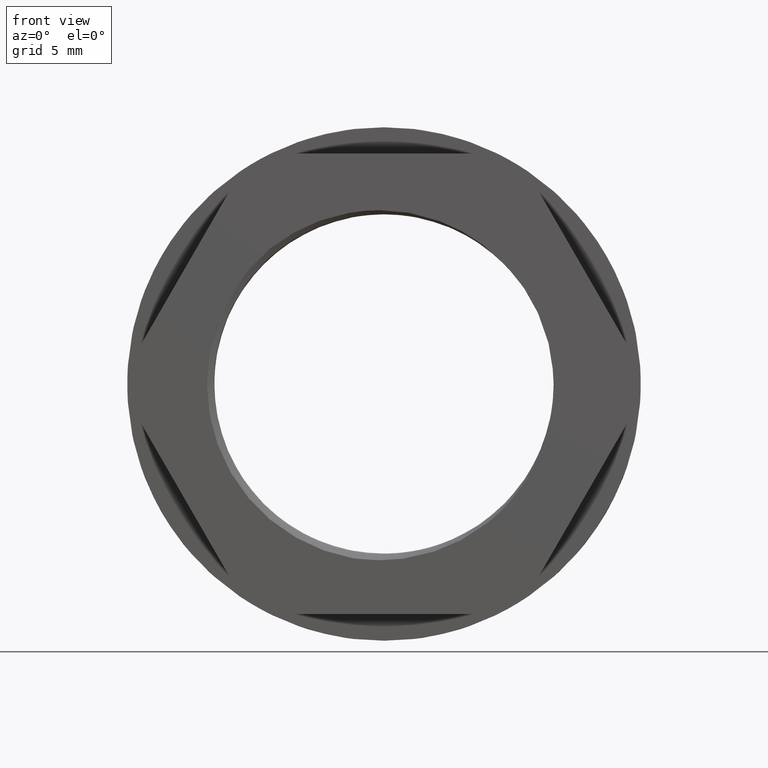
[diagram: clean part render]
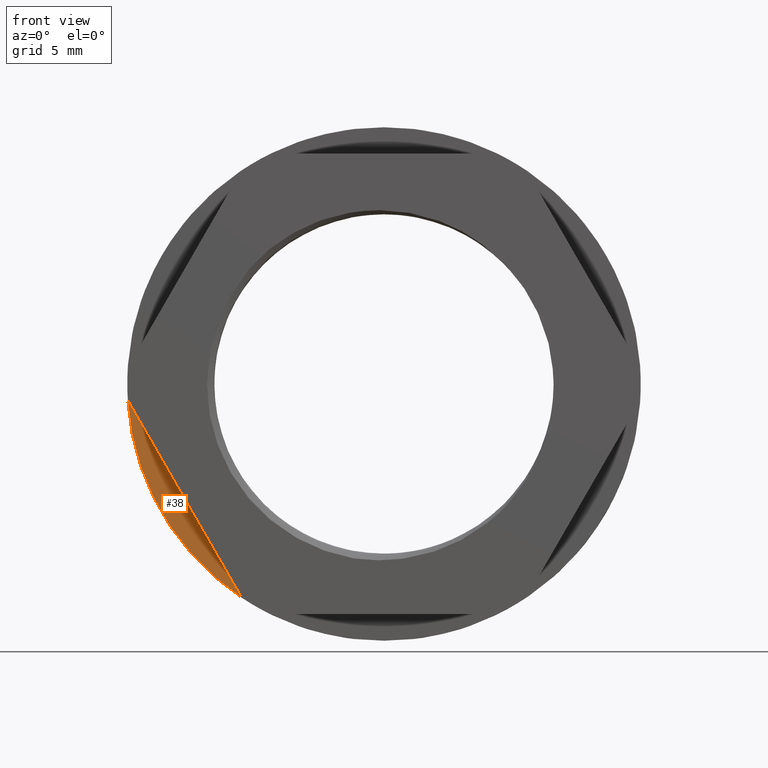
[diagram: same view with one face highlighted and labeled with its STEP entity id]
A machine part, front view. The second image highlights one B-rep face of the part: STEP entity #38.
In plain terms, the highlighted planar face has unit normal (0, -1, 0).
Its self-contained STEP definition (entity closure, byte-faithful):
#38 = ADVANCED_FACE ( 'NONE', ( #1664 ), #1659, .T. ) ;
#83 = EDGE_CURVE ( 'NONE', #748, #780, #1880, .T. ) ;
#98 = EDGE_CURVE ( 'NONE', #748, #780, #1387, .T. ) ;
#748 = VERTEX_POINT ( 'NONE', #2160 ) ;
#780 = VERTEX_POINT ( 'NONE', #2195 ) ;
#827 = ORIENTED_EDGE ( 'NONE', *, *, #98, .F. ) ;
#842 = ORIENTED_EDGE ( 'NONE', *, *, #83, .T. ) ;
#964 = EDGE_LOOP ( 'NONE', ( #842, #827 ) ) ;
#1324 = AXIS2_PLACEMENT_3D ( 'NONE', #1692, #1663, #1686 ) ;
#1379 = VECTOR ( 'NONE', #1901, 1000.000000000000000 ) ;
#1387 = CIRCLE ( 'NONE', #1394, 14.50000000000000000 ) ;
#1394 = AXIS2_PLACEMENT_3D ( 'NONE', #2025, #2039, #2011 ) ;
#1659 = PLANE ( 'NONE',  #1324 ) ;
#1663 = DIRECTION ( 'NONE',  ( 0.0000000000000000000, -1.000000000000000000, 0.0000000000000000000 ) ) ;
#1664 = FACE_OUTER_BOUND ( 'NONE', #964, .T. ) ;
#1686 = DIRECTION ( 'NONE',  ( 0.0000000000000000000, -0.0000000000000000000, -1.000000000000000000 ) ) ;
#1692 = CARTESIAN_POINT ( 'NONE',  ( 0.0000000000000000000, -11.70000000000000100, 0.0000000000000000000 ) ) ;
#1880 = LINE ( 'NONE', #1943, #1379 ) ;
#1901 = DIRECTION ( 'NONE',  ( -0.4999999999999998900, -0.0000000000000000000, 0.8660254037844387100 ) ) ;
#1943 = CARTESIAN_POINT ( 'NONE',  ( -14.09811457199406300, -11.70000000000000100, -1.581349270379120100 ) ) ;
#2011 = DIRECTION ( 'NONE',  ( 0.0000000000000000000, 0.0000000000000000000, -1.000000000000000000 ) ) ;
#2025 = CARTESIAN_POINT ( 'NONE',  ( 0.0000000000000000000, -11.70000000000000100, 0.0000000000000000000 ) ) ;
#2039 = DIRECTION ( 'NONE',  ( 0.0000000000000000000, 1.000000000000000000, 0.0000000000000000000 ) ) ;
#2160 = CARTESIAN_POINT ( 'NONE',  ( -8.047022104531421900, -11.70000000000000100, -12.06214886532174700 ) ) ;
#2195 = CARTESIAN_POINT ( 'NONE',  ( -14.46963839386398700, -11.70000000000000100, -0.9378511346782468800 ) ) ;